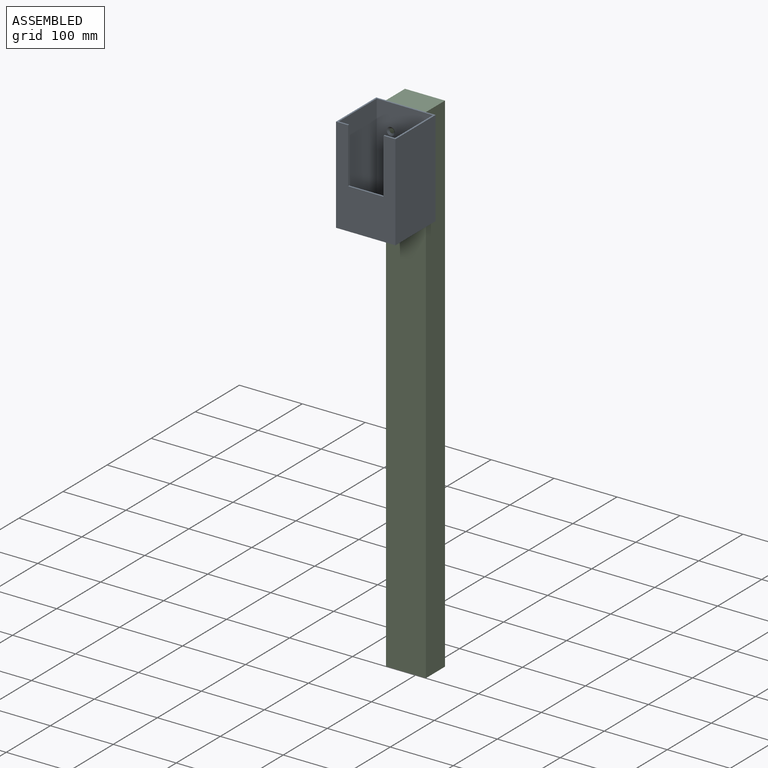
[diagram: assembled view]
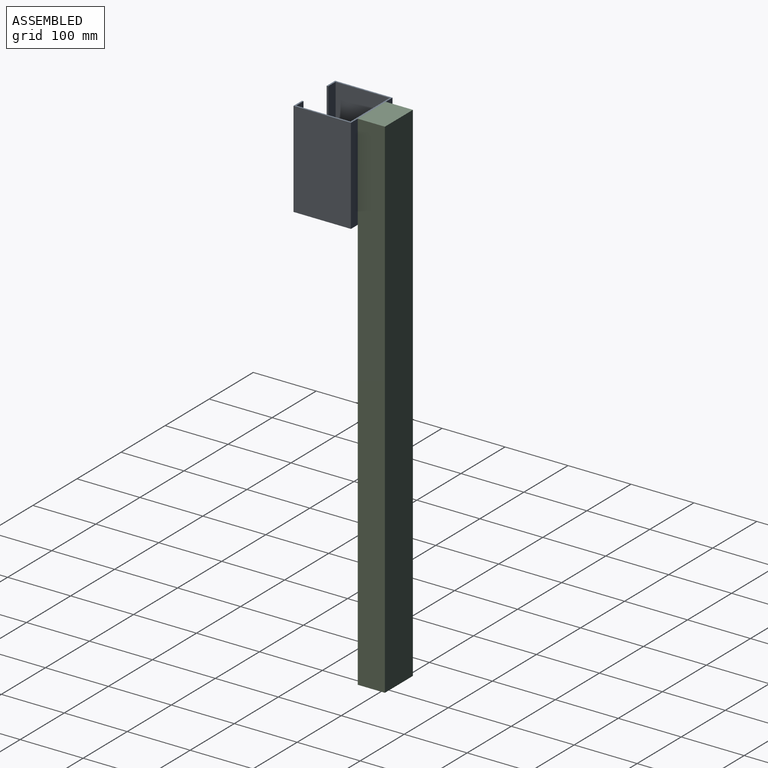
[diagram: assembled view, second angle]
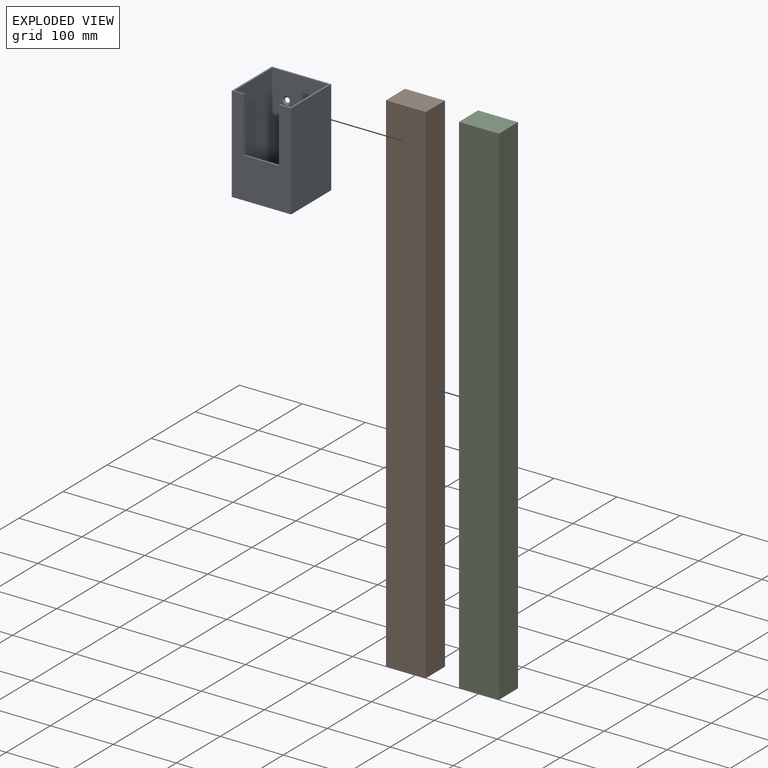
[diagram: exploded view]
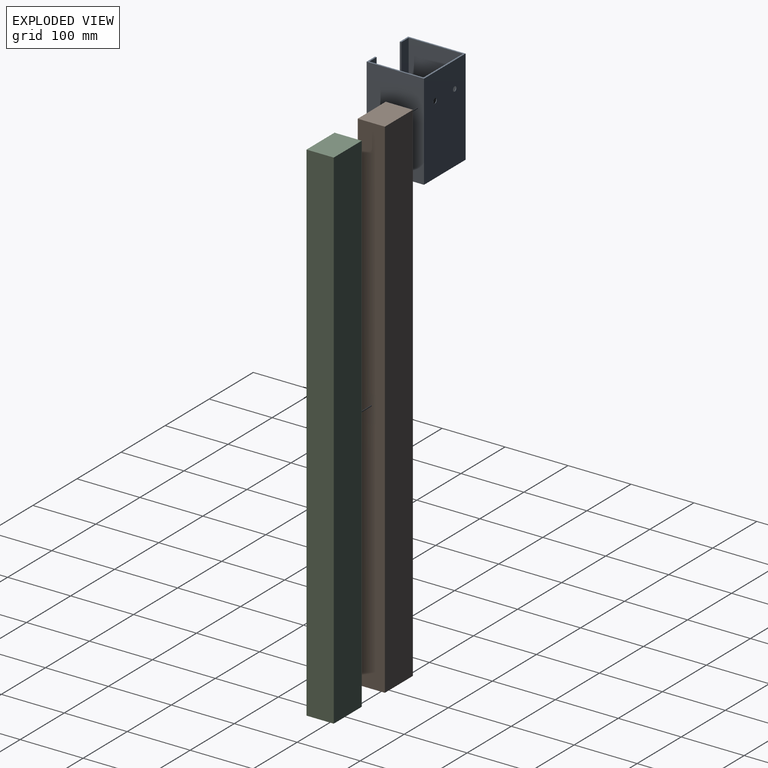
[diagram: exploded view, second angle]
ASSEMBLY  parts=3 mates=2
PART A: 16 faces, bbox 94.3x91.2x152.4 mm
  f0: plane 152.4x94.32mm, normal (0,-1,0), area 9454.6mm2, adj f1,f3,f4,f5,f11,f12,f13
  f1: plane 94.32x91.17mm, normal (0,0,1), area 773.9mm2, adj f0,f2,f3,f4,f6,f7,f8,f9
  f2: plane 152.4x94.32mm, normal (0,1,0), area 14282.4mm2, adj f1,f3,f4,f5,f14,f15
  f3: plane 152.4x91.17mm, normal (-1,0,0), area 13894.3mm2, adj f0,f1,f2,f5
  f4: plane 152.4x91.17mm, normal (1,0,0), area 13894.3mm2, adj f0,f1,f2,f5
  f5: plane 94.32x91.17mm, normal (0,0,-1), area 8598.7mm2, adj f0,f2,f3,f4
  f6: plane 149.86x89.24mm, normal (0,-1,0), area 13119.4mm2, adj f1,f7,f9,f10,f14,f15
  f7: plane 149.86x86.09mm, normal (1,0,0), area 12901.4mm2, adj f1,f6,f8,f10
  f8: plane 149.86x89.24mm, normal (0,1,0), area 8453.7mm2, adj f1,f7,f9,f10,f11,f12,f13
  f9: plane 149.86x86.09mm, normal (-1,0,0), area 12901.4mm2, adj f1,f6,f8,f10
  f10: plane 89.24x86.09mm, normal (0,0,1), area 7682.2mm2, adj f6,f7,f8,f9
  f11: plane 56.12x2.54mm, normal (0,0,1), area 142.5mm2, adj f0,f8,f12,f13
  f12: plane 87.65x2.54mm, normal (-1,0,0), area 222.6mm2, adj f0,f1,f8,f11
  f13: plane 87.65x2.54mm, normal (1,0,0), area 222.6mm2, adj f0,f1,f8,f11
  f14: cone r=3.17mm half-angle=45deg, axis (0,-1,0), area 114.7mm2, adj f2,f6
  f15: cone r=3.17mm half-angle=45deg, axis (0,-1,0), area 114.7mm2, adj f2,f6
PART B: 6 faces, bbox 63.5x43.2x812.8 mm
  f0: plane 812.8x63.5mm, normal (0,1,0), area 51612.8mm2, adj f1,f3,f4,f5
  f1: plane 812.8x43.18mm, normal (-1,0,0), area 35096.7mm2, adj f0,f2,f4,f5
  f2: plane 812.8x63.5mm, normal (0,-1,0), area 51612.8mm2, adj f1,f3,f4,f5
  f3: plane 812.8x43.18mm, normal (1,0,0), area 35096.7mm2, adj f0,f2,f4,f5
  f4: plane 63.5x43.18mm, normal (0,0,1), area 2741.9mm2, adj f0,f1,f2,f3
  f5: plane 63.5x43.18mm, normal (0,0,-1), area 2741.9mm2, adj f0,f1,f2,f3
PART C: same geometry as B
PLACE A t=(0,-67.17,660.4)mm
PLACE B at identity
PLACE C at identity
MATE planar A.f2 <-> B.f2  axis (0,1,0) through (0,-21.59,736.38)mm
MATE planar A.f1 <-> B.f4  axis (0,0,1) through (0,-59.01,812.8)mm
